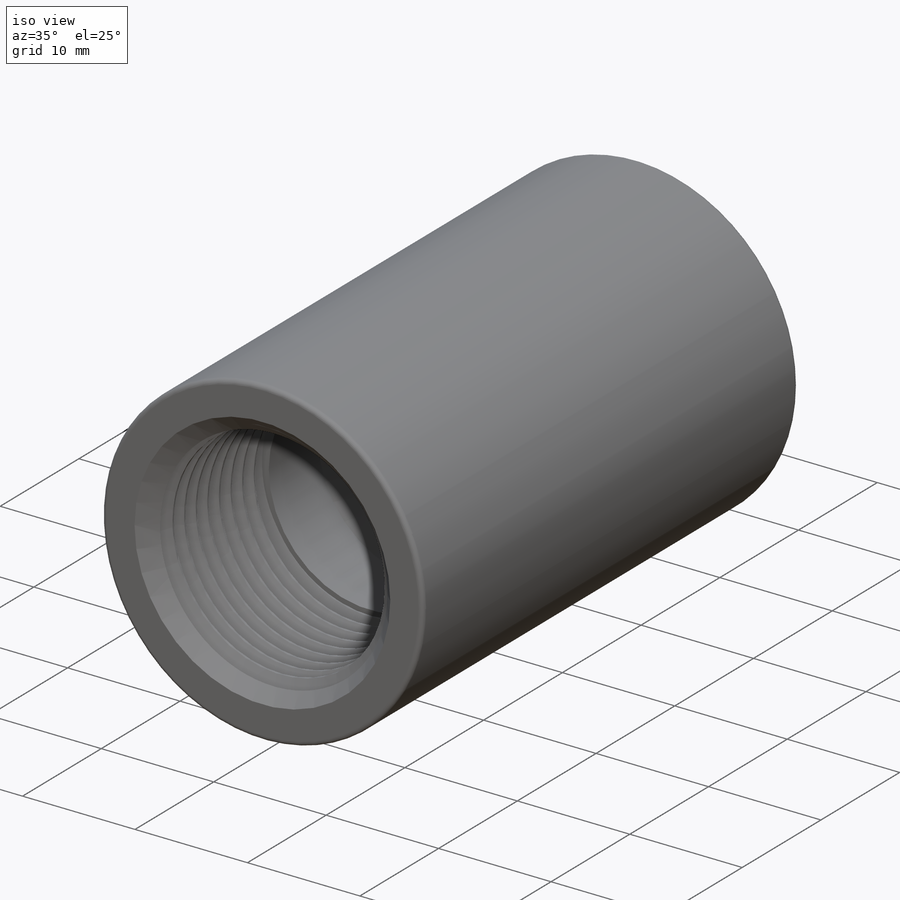
[diagram: iso view]
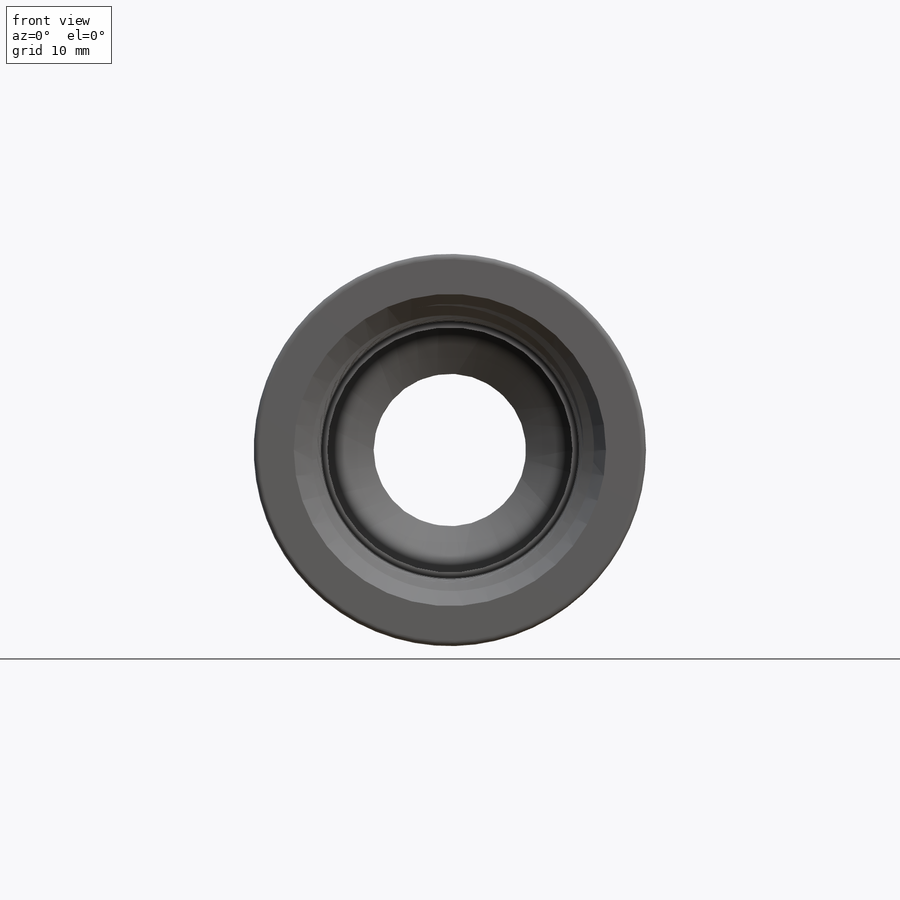
[diagram: front view]
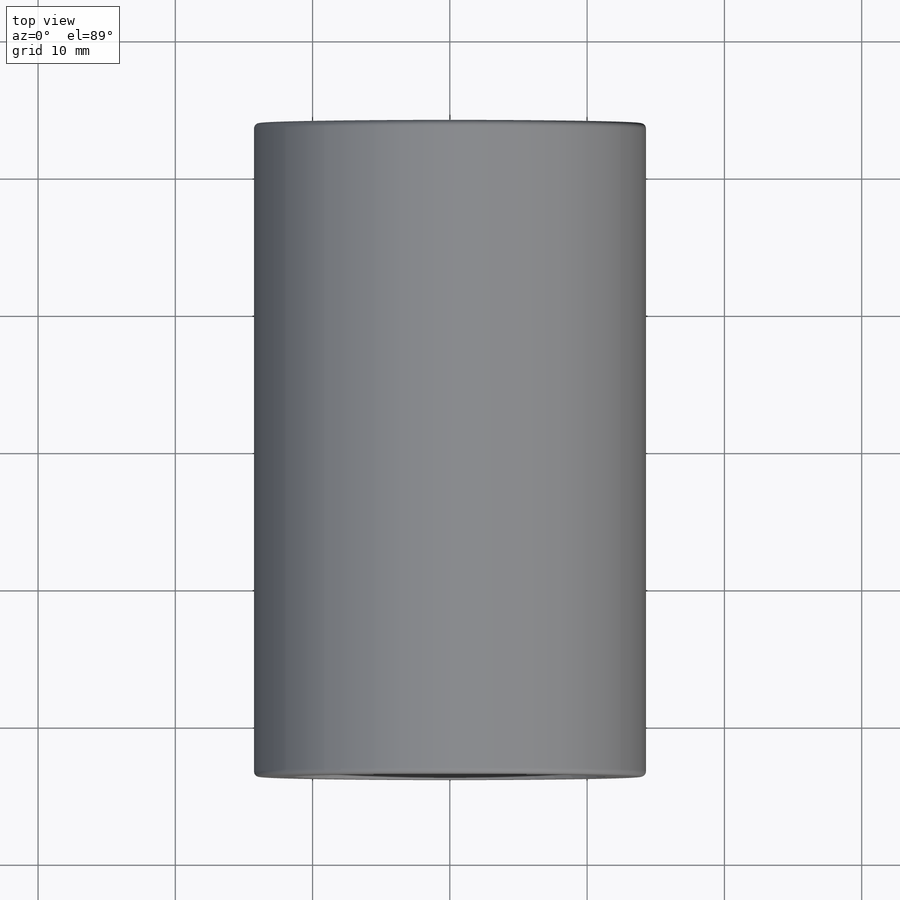
[diagram: top view]
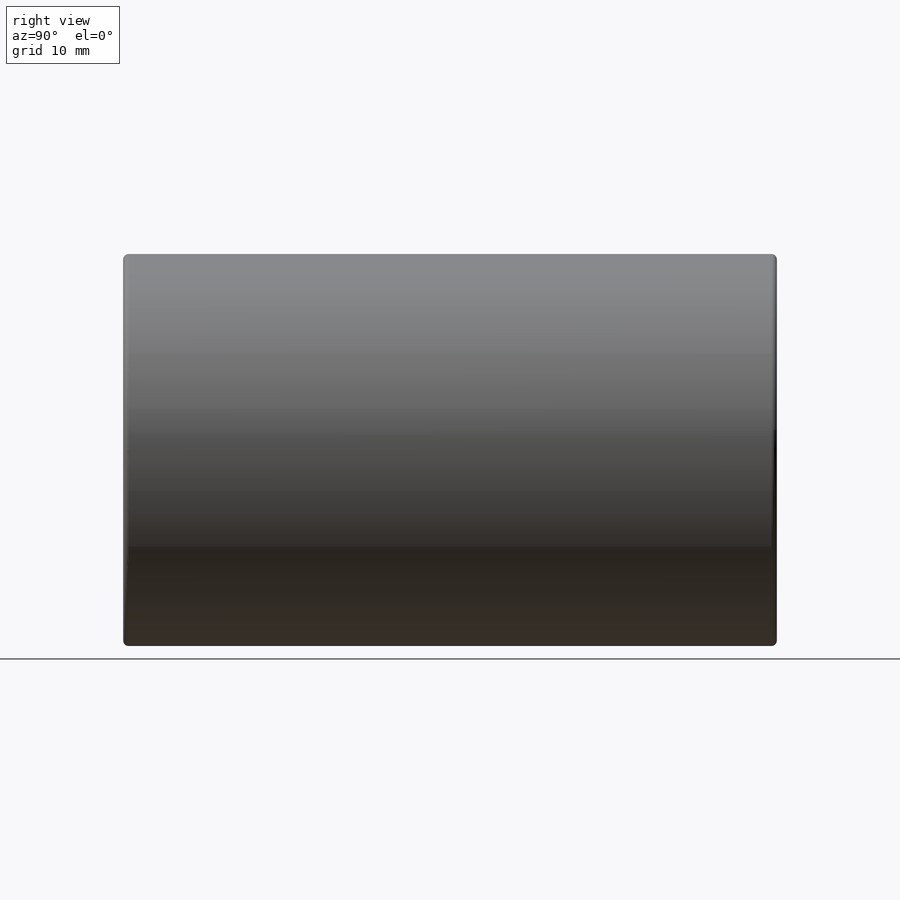
[diagram: right view]
SOLIDWORKS PART (.sldprt)
format: sldprt  version: not decoded by parser v0  size: 1,075,712 bytes
history: native  units: mm
features: sketch x13, cut_extrude x7, helix x2, sweep x2, material x1, extrude x1, fillet x1 (+14 scaffold rows collapsed)
feature tree (41):
  scaffold x14  (default folders/planes/origin — collapsed)
  material  "Material <not specified>"
  sketch  "Sketch0"  dims[c1.A=47.625mm c1.B=50.8mm c2.A=63.5mm c2.D3=88.9mm c2.Angle=45.0deg c2.B Lenght=19.05mm c2.B=44.45mm c2.ID A=~17.859375mm c2.Pipe OD A=21.336mm c2.L2 A=~13.55598mm c3.B=47.625mm c4.B=28.575mm c4.ID B=11.1125mm c4.L2 B=~10.20572mm c4.Pipe OD B=13.716mm c4.L4 A=19.8501mm]
  sketch  "Sketch1"  dims[Body OD=~107.116945mm B=~132.966724mm]
  extrude  "Extrude1"  [1 undecoded]
  fillet  "Fillet1"  Radius=0.396875mm
  sketch  "Sketch2"
  cut_extrude  "Extrude2"  [1 undecoded]
  sketch  "Sketch3"
  cut_extrude  "Extrude3"  A=1.783333deg  [1 undecoded]
  sketch  "Sketch4"  dims[D1=0.0mm]
  helix  "Helix/Spiral A"  Pitch=14.967091mm L=14.967091mm A=1.783333deg
  sketch  "Sketch5"  dims[c1.D1=~1.411111mm c1.D2=~0.176389mm c1.D3=~1.234722mm c1.D4=~1.612148mm c2.D4=60.0deg]
  sweep  "Sweep1"
  sketch  "Sketch6"  dims[D2=~0.705556mm D1=0.0mm]
  cut_extrude  "Extrude4"  [1 undecoded]
  sketch  "Sketch7"
  cut_extrude  "Extrude5"  [1 undecoded]
  sketch  "Sketch8"
  cut_extrude  "Extrude6"  [1 undecoded]
  sketch  "Sketch9"
  cut_extrude  "Extrude7"  A=1.783333deg  [1 undecoded]
  sketch  "Sketch10"  dims[D1=0.0mm]
  helix  "Helix/Spiral B"  Pitch=11.616831mm L=11.616831mm A=1.783333deg
  sketch  "Sketch11"  dims[c1.D1=~1.411111mm c1.D2=~0.176389mm c1.D3=~1.234722mm c1.D4=~1.023895mm c2.D4=60.0deg]
  sweep  "Sweep2"
  sketch  "Sketch12"  dims[D1=~0.705556mm]
  cut_extrude  "Extrude8"  [1 undecoded]
decode coverage: 13 of 26 modeling features carry decoded parameters
note: ~ marks probable driven/reference dimensions
note: 8 parameter values undecoded
summary: no parameter record found for 8 features
note: suppression state not decoded; provenance and decode notes live in map.json
